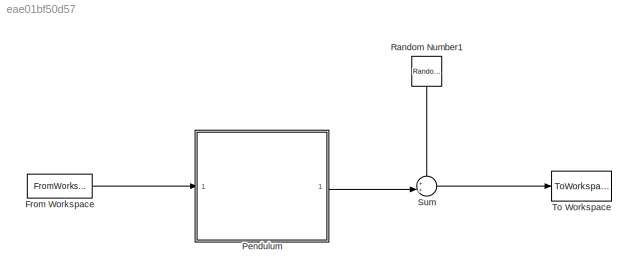
MODEL slx_eae01bf50d57
KIND model
CONFIG AbsTol = auto
CONFIG FixedStep = auto
CONFIG MaxStep = auto
CONFIG MinStep = auto
CONFIG RelTol = 1e-3
CONFIG SampleTimeConstraint = Unconstrained
CONFIG Solver = ode45
CONFIG SolverMode = Auto
CONFIG SolverName = ode45
CONFIG StartTime = 0.0
CONFIG StopTime = 10
BLOCK [FromWorkspace] From Workspace
  SampleTime = h
  VariableName = U
  ZeroCross = on
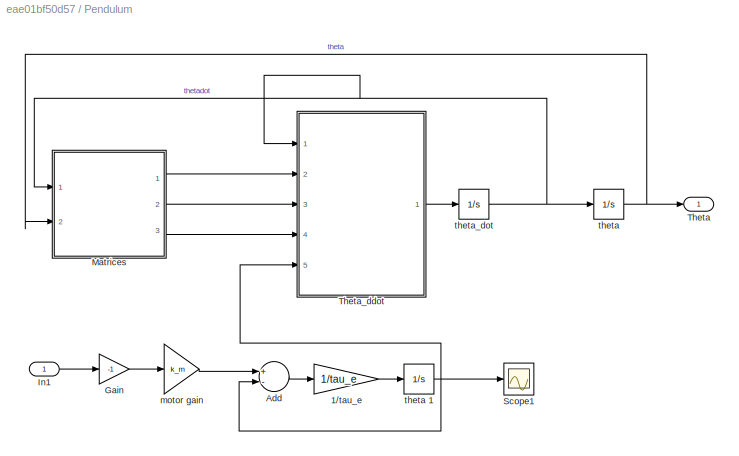
BLOCK [SubSystem] Pendulum
  Ports = [1, 1]
  RequestExecContextInheritance = off
  Variant = off
BLOCK [Gain] Pendulum/1//tau_e 
  Gain = 1/tau_e
  OutDataTypeStr = Inherit: Inherit via internal rule
  ParamDataTypeStr = Inherit: Inherit via internal rule
  SaturateOnIntegerOverflow = off
BLOCK [Sum] Pendulum/Add
  InputSameDT = off
  Inputs = +-
  OutDataTypeStr = Inherit: Inherit via internal rule
  Ports = [2, 1]
  SaturateOnIntegerOverflow = off
BLOCK [Gain] Pendulum/Gain
  Gain = -1
  OutDataTypeStr = Inherit: Inherit via internal rule
  ParamDataTypeStr = Inherit: Inherit via internal rule
  SaturateOnIntegerOverflow = off
BLOCK [Inport] Pendulum/In1
  IconDisplay = Port number
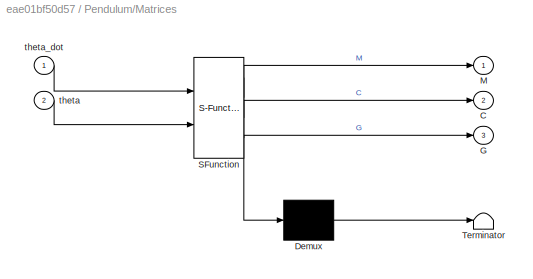
BLOCK [SubSystem] Pendulum/Matrices
  ErrorFcn = Stateflow.Translate.translate
  PermitHierarchicalResolution = ExplicitOnly
  Ports = [2, 3]
  RequestExecContextInheritance = off
  SFBlockType = MATLAB Function
  TreatAsAtomicUnit = on
  Variant = off
BLOCK [Demux] Pendulum/Matrices/ Demux 
  Outputs = 1
  Ports = [1, 1]
BLOCK [S-Function] Pendulum/Matrices/ SFunction 
  EnableBusSupport = on
  FunctionName = sf_sfun
  PortCounts = [2 4]
  Ports = [2, 4]
  SFunctionDeploymentMode = off
  Tag = Stateflow S-Function Pendulum_model_nlsysid 2
BLOCK [Terminator] Pendulum/Matrices/ Terminator 
BLOCK [Outport] Pendulum/Matrices/C
  IconDisplay = Port number
  Port = 2
BLOCK [Outport] Pendulum/Matrices/G
  IconDisplay = Port number
  Port = 3
BLOCK [Outport] Pendulum/Matrices/M
  IconDisplay = Port number
BLOCK [Inport] Pendulum/Matrices/theta
  IconDisplay = Port number
  Port = 2
BLOCK [Inport] Pendulum/Matrices/theta_dot
  IconDisplay = Port number
BLOCK [Scope] Pendulum/Scope1
  Ports = [1]
  ScopeSpecificationString = Simulink.scopes.TimeScopeBlockCfg('CurrentConfiguration', extmgr.ConfigurationSet(extmgr.Configuration('Core','General UI',true),extmgr.Configuration('Core','Source UI',true),extmgr.Configuration('Sources','WiredSimulink',true,'DataLoggingLimitDataPoints',true,'DataLoggingSaveFormat','Array','DataLoggingDecimation','1','DataLoggingDecimateData',true,'DataLoggingVariableName','ScopeData1'),extmgr.C...<+1714ch>
BLOCK [Outport] Pendulum/Theta
  IconDisplay = Port number
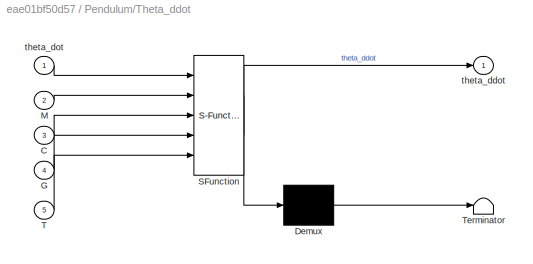
BLOCK [SubSystem] Pendulum/Theta_ddot 
  ErrorFcn = Stateflow.Translate.translate
  PermitHierarchicalResolution = ExplicitOnly
  Ports = [5, 1]
  RequestExecContextInheritance = off
  SFBlockType = MATLAB Function
  TreatAsAtomicUnit = on
  Variant = off
BLOCK [Demux] Pendulum/Theta_ddot / Demux 
  Outputs = 1
  Ports = [1, 1]
BLOCK [S-Function] Pendulum/Theta_ddot / SFunction 
  EnableBusSupport = on
  FunctionName = sf_sfun
  PortCounts = [5 2]
  Ports = [5, 2]
  SFunctionDeploymentMode = off
  Tag = Stateflow S-Function Pendulum_model_nlsysid 1
BLOCK [Terminator] Pendulum/Theta_ddot / Terminator 
BLOCK [Inport] Pendulum/Theta_ddot /C
  IconDisplay = Port number
  Port = 3
BLOCK [Inport] Pendulum/Theta_ddot /G
  IconDisplay = Port number
  Port = 4
BLOCK [Inport] Pendulum/Theta_ddot /M
  IconDisplay = Port number
  Port = 2
BLOCK [Inport] Pendulum/Theta_ddot /T
  IconDisplay = Port number
  Port = 5
BLOCK [Outport] Pendulum/Theta_ddot /theta_ddot
  IconDisplay = Port number
BLOCK [Inport] Pendulum/Theta_ddot /theta_dot
  IconDisplay = Port number
BLOCK [Gain] Pendulum/motor gain 
  Gain = k_m
  OutDataTypeStr = Inherit: Inherit via internal rule
  ParamDataTypeStr = Inherit: Inherit via internal rule
  SaturateOnIntegerOverflow = off
BLOCK [Integrator] Pendulum/theta 
  InitialCondition = [x0(1) x0(2)]
  Ports = [1, 1]
BLOCK [Integrator] Pendulum/theta 1
  InitialCondition = x0(5)
  Ports = [1, 1]
BLOCK [Integrator] Pendulum/theta_dot 
  InitialCondition = [x0(3) x0(4)]
  Ports = [1, 1]
BLOCK [RandomNumber] Random Number1
  SampleTime = h
  Variance = 1e-4
BLOCK [Sum] Sum
  IconShape = round
  InputSameDT = off
  Inputs = ++|
  OutDataTypeStr = Inherit: Inherit via internal rule
  Ports = [2, 1]
  SaturateOnIntegerOverflow = off
BLOCK [ToWorkspace] To Workspace
  FixptAsFi = on
  MaxDataPoints = inf
  Ports = [1]
  SampleTime = h
  Save2DSignal = 3-D array (concatenate along third dimension)
  VariableName = y
LINE From Workspace:1 -> Pendulum:1
LINE Pendulum/1//tau_e :1 -> Pendulum/theta 1:1
LINE Pendulum/Add:1 -> Pendulum/1//tau_e :1
LINE Pendulum/Gain:1 -> Pendulum/motor gain :1
LINE Pendulum/In1:1 -> Pendulum/Gain:1
LINE Pendulum/Matrices:1 -> Pendulum/Theta_ddot :2
LINE Pendulum/Matrices:2 -> Pendulum/Theta_ddot :3
LINE Pendulum/Matrices:3 -> Pendulum/Theta_ddot :4
LINE Pendulum/Theta_ddot :1 -> Pendulum/theta_dot :1
LINE Pendulum/motor gain :1 -> Pendulum/Add:1
NET Pendulum/theta 1:1 -> Pendulum/Add:2, Pendulum/Scope1:1, Pendulum/Theta_ddot :5
NET Pendulum/theta :1 -> Pendulum/Matrices:2, Pendulum/Theta:1
NET Pendulum/theta_dot :1 -> Pendulum/Matrices:1, Pendulum/Theta_ddot :1, Pendulum/theta :1
LINE Pendulum:1 -> Sum:2
LINE Random Number1:1 -> Sum:1
LINE Sum:1 -> To Workspace:1
note: NET lines group one-source signal fan-out (src -> all destinations, sorted); 1:1 wires keep LINE
CHART Pendulum/Theta_ddot
 states=1 transitions=1
  STATE_LABEL 'eML_blk_kernel()'
  STATE_LABEL 'SCRIPT:\nfunction theta_ddot = fcn(theta_dot,M,C,G,T)\ntheta_ddot = [0;0];\n\ntheta_ddot = M\\[T;0] - M\\C*theta_dot - M\\G;\n'
CHART Pendulum/Matrices states=1 transitions=1
  STATE_LABEL 'eML_blk_kernel()'
  STATE_LABEL 'SCRIPT:\nfunction [M, C, G] = fcn(theta_dot, theta)\n\nM = zeros(2);\nC = zeros(2);\nG = [0;0];\n\n% Old parameters\ng = 9.81; \nl1 = 0.1;\nl2 = 0.1;\nm1 = 0.125;\nm2 = 0.05;\nc1 = -0.04; % Keeping it negative results in no motion at all, -0.04 or + 0.04?\nc2 = 0.06;\nI1 = 0.074;\nI2 = 0.00012;\n% I2 = 1e-4*0.8857;\nb1 = 4.8;\nb2 = 0.0002;\n% b2 = 1e-4*0.5459;\n\n% New parameters used for plotting\ng = 9.81; \nl1 = 0.1;\n...<+747ch>'
